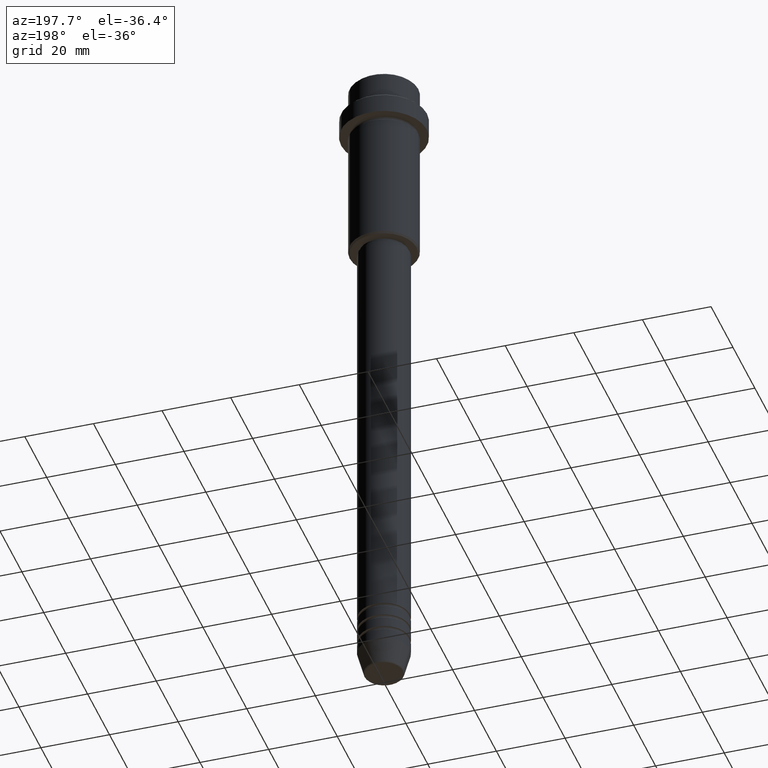
[diagram: clean part render]
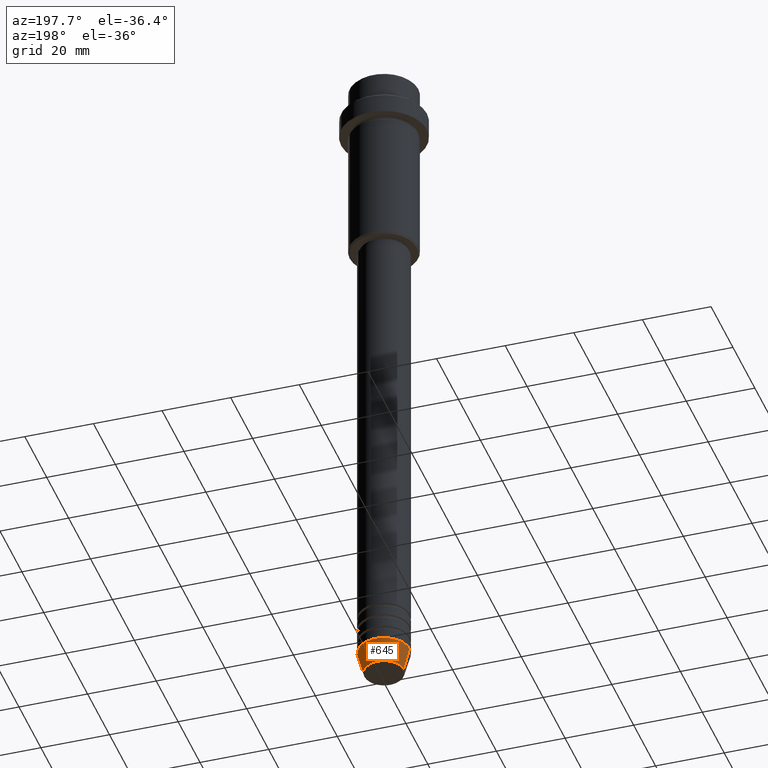
[diagram: same view with one face highlighted and labeled with its STEP entity id]
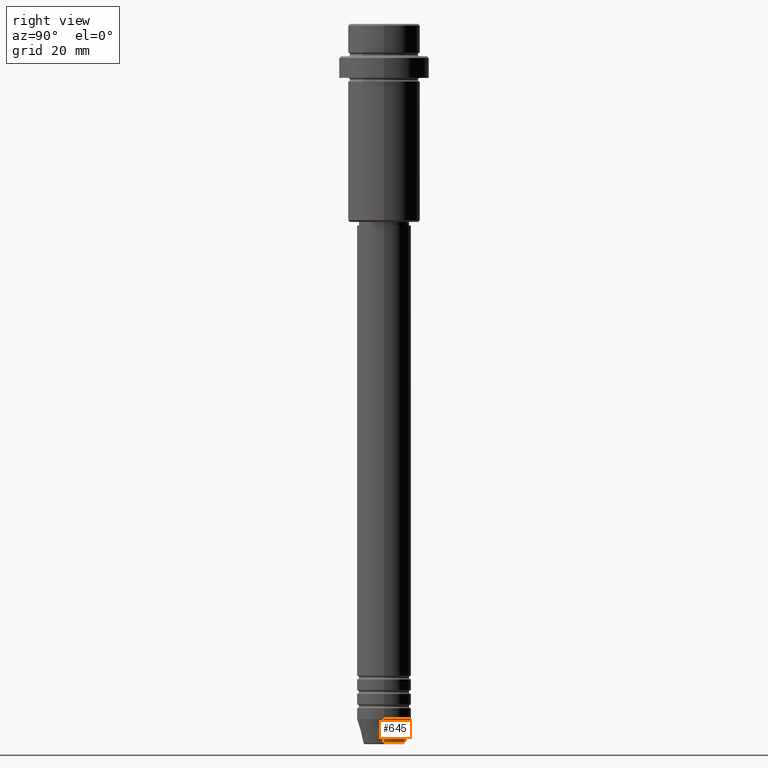
[diagram: same view with one face highlighted and labeled with its STEP entity id]
A machine part, auxiliary view. The second image highlights one B-rep face of the part: STEP entity #645.
A second angle (right view) of the same face is appended — the face is thin or edge-on in the first view.
In plain terms, the highlighted conical surface has half-angle 15 deg.
Its self-contained STEP definition (entity closure, byte-faithful):
#13 = VERTEX_POINT ( 'NONE', #314 ) ;
#86 = ORIENTED_EDGE ( 'NONE', *, *, #978, .T. ) ;
#106 = DIRECTION ( 'NONE',  ( -0.000000000000000000, -0.000000000000000000, 1.000000000000000000 ) ) ;
#110 = AXIS2_PLACEMENT_3D ( 'NONE', #699, #149, #268 ) ;
#116 = EDGE_CURVE ( 'NONE', #336, #1210, #232, .T. ) ;
#149 = DIRECTION ( 'NONE',  ( -0.000000000000000000, -0.000000000000000000, 1.000000000000000000 ) ) ;
#232 = CIRCLE ( 'NONE', #478, 5.723655072137191269 ) ;
#266 = DIRECTION ( 'NONE',  ( -0.000000000000000000, -0.000000000000000000, 1.000000000000000000 ) ) ;
#268 = DIRECTION ( 'NONE',  ( 1.000000000000000000, 0.000000000000000000, 0.000000000000000000 ) ) ;
#293 = CIRCLE ( 'NONE', #1090, 7.500000000000000000 ) ;
#314 = CARTESIAN_POINT ( 'NONE',  ( -7.500000000000000000, 9.184850993605147944E-16, -193.0000000000000000 ) ) ;
#336 = VERTEX_POINT ( 'NONE', #1099 ) ;
#354 = ORIENTED_EDGE ( 'NONE', *, *, #116, .T. ) ;
#370 = FACE_OUTER_BOUND ( 'NONE', #1416, .T. ) ;
#445 = CARTESIAN_POINT ( 'NONE',  ( 0.000000000000000000, 0.000000000000000000, -199.6294095225512706 ) ) ;
#478 = AXIS2_PLACEMENT_3D ( 'NONE', #445, #106, #879 ) ;
#557 = ORIENTED_EDGE ( 'NONE', *, *, #830, .F. ) ;
#568 = EDGE_CURVE ( 'NONE', #1192, #13, #293, .T. ) ;
#586 = LINE ( 'NONE', #1014, #1184 ) ;
#645 = ADVANCED_FACE ( 'NONE', ( #370 ), #1249, .T. ) ;
#699 = CARTESIAN_POINT ( 'NONE',  ( 0.000000000000000000, 0.000000000000000000, -193.0000000000000000 ) ) ;
#745 = CARTESIAN_POINT ( 'NONE',  ( 7.500000000000000000, 0.000000000000000000, -193.0000000000000000 ) ) ;
#807 = CARTESIAN_POINT ( 'NONE',  ( 0.000000000000000000, 0.000000000000000000, -193.0000000000000000 ) ) ;
#822 = ORIENTED_EDGE ( 'NONE', *, *, #568, .F. ) ;
#830 = EDGE_CURVE ( 'NONE', #336, #1192, #1284, .T. ) ;
#879 = DIRECTION ( 'NONE',  ( 1.000000000000000000, 0.000000000000000000, 0.000000000000000000 ) ) ;
#895 = DIRECTION ( 'NONE',  ( -0.2588190451025213501, 3.169619151431772337E-17, 0.9659258262890680902 ) ) ;
#978 = EDGE_CURVE ( 'NONE', #1210, #13, #586, .T. ) ;
#1014 = CARTESIAN_POINT ( 'NONE',  ( -7.500000000000000000, 9.184850993605147944E-16, -193.0000000000000000 ) ) ;
#1057 = CARTESIAN_POINT ( 'NONE',  ( 7.500000000000000000, 0.000000000000000000, -193.0000000000000000 ) ) ;
#1090 = AXIS2_PLACEMENT_3D ( 'NONE', #807, #266, #1131 ) ;
#1099 = CARTESIAN_POINT ( 'NONE',  ( 5.723655072137191269, 0.000000000000000000, -199.6294095225512706 ) ) ;
#1131 = DIRECTION ( 'NONE',  ( 1.000000000000000000, 0.000000000000000000, 0.000000000000000000 ) ) ;
#1184 = VECTOR ( 'NONE', #895, 1000.000000000000000 ) ;
#1192 = VERTEX_POINT ( 'NONE', #1057 ) ;
#1202 = DIRECTION ( 'NONE',  ( 0.2588190451025213501, 0.000000000000000000, 0.9659258262890680902 ) ) ;
#1210 = VERTEX_POINT ( 'NONE', #1282 ) ;
#1249 = CONICAL_SURFACE ( 'NONE', #110, 7.500000000000000000, 0.2617993877991500740 ) ;
#1282 = CARTESIAN_POINT ( 'NONE',  ( -5.723655072137191269, 8.097153428560735915E-16, -199.6294095225512706 ) ) ;
#1284 = LINE ( 'NONE', #745, #1387 ) ;
#1387 = VECTOR ( 'NONE', #1202, 1000.000000000000000 ) ;
#1416 = EDGE_LOOP ( 'NONE', ( #354, #86, #822, #557 ) ) ;